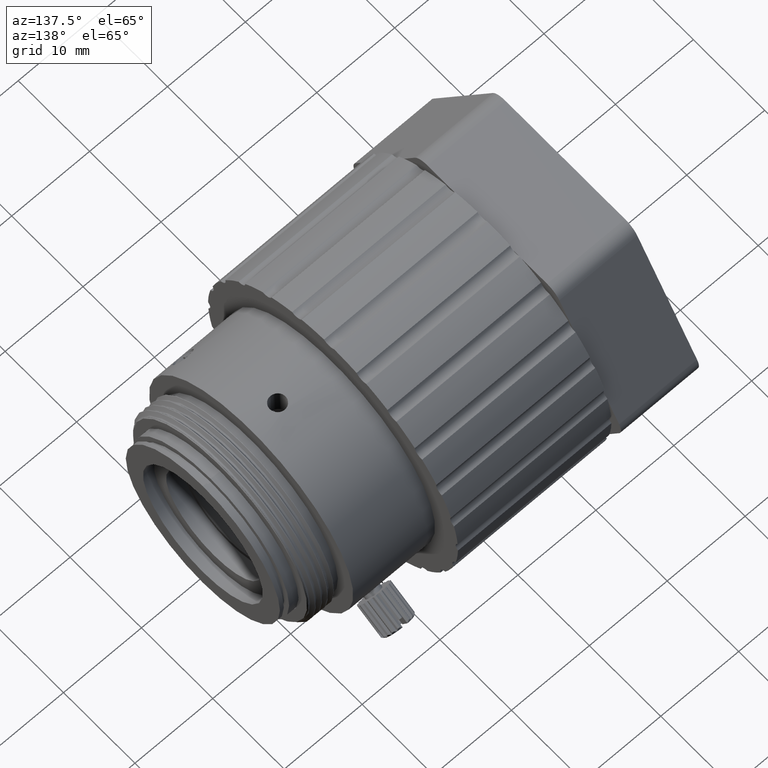
[diagram: clean part render]
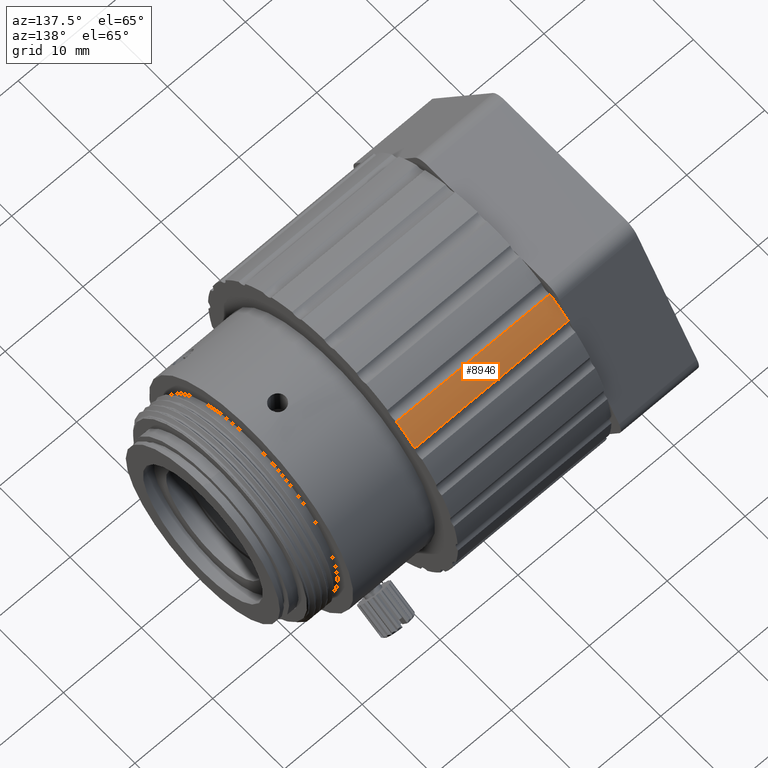
[diagram: same view with one face highlighted and labeled with its STEP entity id]
A machine part, auxiliary view. The second image highlights one B-rep face of the part: STEP entity #8946.
In plain terms, the highlighted cylindrical surface (partial cylindrical patch) has radius 17.5 mm, axis along (-1, 0, 0).
Its self-contained STEP definition (entity closure, byte-faithful):
#900 = CARTESIAN_POINT ( 'NONE',  ( -11.43804180327911979, 14.56891013527994438, 59.72800335367711710 ) ) ;
#1110 = VECTOR ( 'NONE', #14960, 1000.000000000000000 ) ;
#1628 = LINE ( 'NONE', #3952, #1110 ) ;
#1786 = DIRECTION ( 'NONE',  ( -1.000000000000000000, 0.000000000000000000, 0.000000000000000000 ) ) ;
#2586 = LINE ( 'NONE', #14791, #4021 ) ;
#2809 = EDGE_CURVE ( 'NONE', #11013, #15052, #1628, .T. ) ;
#3216 = CARTESIAN_POINT ( 'NONE',  ( 8.259214877692100387, 3.111155698412859660, 46.50038591147875877 ) ) ;
#3478 = CIRCLE ( 'NONE', #9102, 17.49999999807705464 ) ;
#3952 = CARTESIAN_POINT ( 'NONE',  ( -17.27467827770134789, 11.98909186255459147, 61.58124296265865638 ) ) ;
#4021 = VECTOR ( 'NONE', #9471, 1000.000000000000000 ) ;
#5286 = ORIENTED_EDGE ( 'NONE', *, *, #7686, .T. ) ;
#5458 = DIRECTION ( 'NONE',  ( 0.000000000000000000, -0.4724273177222766962, -0.8813696327136163466 ) ) ;
#6730 = CARTESIAN_POINT ( 'NONE',  ( -11.43804180327911979, 11.98909186255464654, 61.58124296265865638 ) ) ;
#7678 = CARTESIAN_POINT ( 'NONE',  ( 8.259214877692100387, 14.56891013527994438, 59.72800335367711710 ) ) ;
#7686 = EDGE_CURVE ( 'NONE', #7727, #9759, #2586, .T. ) ;
#7727 = VERTEX_POINT ( 'NONE', #7678 ) ;
#7794 = AXIS2_PLACEMENT_3D ( 'NONE', #9815, #12445, #13502 ) ;
#8080 = CARTESIAN_POINT ( 'NONE',  ( 8.259214877692100387, 11.98909186255464654, 61.58124296265865638 ) ) ;
#8301 = FACE_OUTER_BOUND ( 'NONE', #15749, .T. ) ;
#8946 = ADVANCED_FACE ( 'NONE', ( #8301 ), #13170, .T. ) ;
#9102 = AXIS2_PLACEMENT_3D ( 'NONE', #3216, #1786, #5458 ) ;
#9471 = DIRECTION ( 'NONE',  ( -1.000000000000000000, 0.000000000000000000, 0.000000000000000000 ) ) ;
#9759 = VERTEX_POINT ( 'NONE', #900 ) ;
#9772 = CARTESIAN_POINT ( 'NONE',  ( -11.43804180327911979, 3.111155698412859660, 46.50038591147875877 ) ) ;
#9815 = CARTESIAN_POINT ( 'NONE',  ( -17.27467827770134789, 3.111155698412859660, 46.50038591147875877 ) ) ;
#10143 = ORIENTED_EDGE ( 'NONE', *, *, #12979, .T. ) ;
#11013 = VERTEX_POINT ( 'NONE', #6730 ) ;
#12002 = DIRECTION ( 'NONE',  ( 0.000000000000000000, -0.4724273177222704789, -0.8813696327136196773 ) ) ;
#12167 = DIRECTION ( 'NONE',  ( 1.000000000000000000, -0.000000000000000000, -0.000000000000000000 ) ) ;
#12445 = DIRECTION ( 'NONE',  ( -1.000000000000000000, 0.000000000000000000, 0.000000000000000000 ) ) ;
#12979 = EDGE_CURVE ( 'NONE', #9759, #11013, #15121, .T. ) ;
#13170 = CYLINDRICAL_SURFACE ( 'NONE', #7794, 17.49999999807705464 ) ;
#13502 = DIRECTION ( 'NONE',  ( 0.000000000000000000, -0.4724273177222766962, -0.8813696327136163466 ) ) ;
#14103 = AXIS2_PLACEMENT_3D ( 'NONE', #9772, #12167, #12002 ) ;
#14244 = ORIENTED_EDGE ( 'NONE', *, *, #15048, .T. ) ;
#14476 = ORIENTED_EDGE ( 'NONE', *, *, #2809, .T. ) ;
#14791 = CARTESIAN_POINT ( 'NONE',  ( -17.27467827770134789, 14.56891013527988932, 59.72800335367711710 ) ) ;
#14960 = DIRECTION ( 'NONE',  ( 1.000000000000000000, -0.000000000000000000, -0.000000000000000000 ) ) ;
#15048 = EDGE_CURVE ( 'NONE', #15052, #7727, #3478, .T. ) ;
#15052 = VERTEX_POINT ( 'NONE', #8080 ) ;
#15121 = CIRCLE ( 'NONE', #14103, 17.49999999807705464 ) ;
#15749 = EDGE_LOOP ( 'NONE', ( #10143, #14476, #14244, #5286 ) ) ;